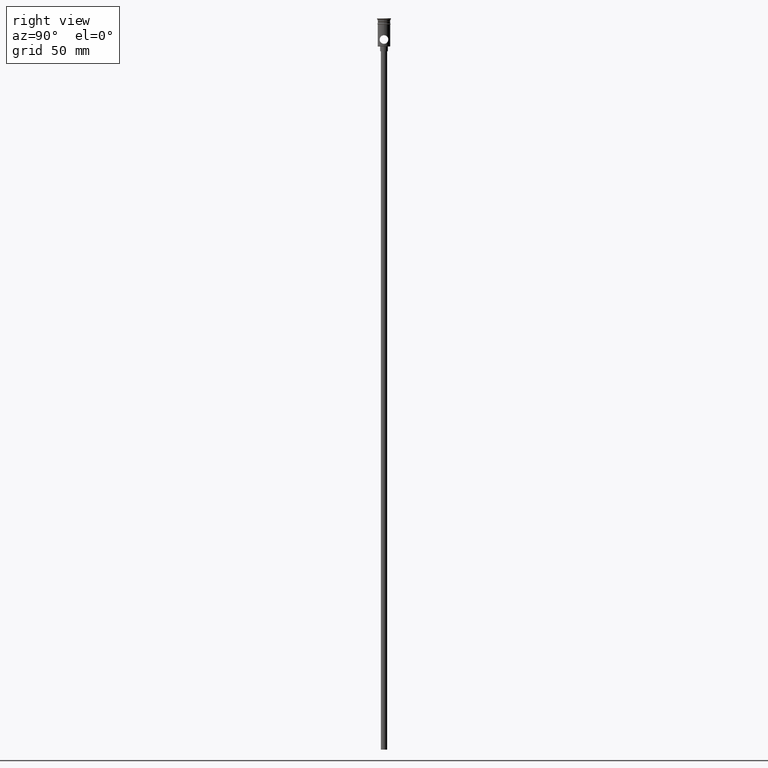
[diagram: clean part render]
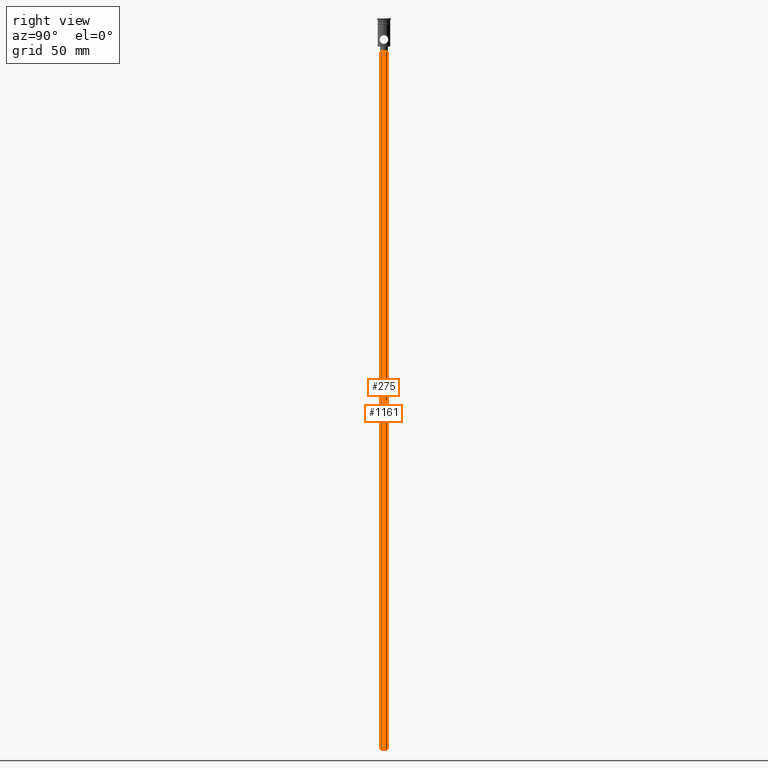
[diagram: same view with one multi-face feature highlighted, each face labeled with its STEP entity id]
A machine part, right view. The highlighted faces form ONE feature: a constant-radius fillet chain: 2 tangent blend faces with common blend radius 2 mm. The faces share edges in the B-rep.
Their STEP definitions:
[1] entity #275 (Cylinder):
#48 = LINE ( 'NONE', #387, #177 ) ;
#57 = VERTEX_POINT ( 'NONE', #770 ) ;
#92 = EDGE_CURVE ( 'NONE', #1415, #57, #395, .T. ) ;
#97 = DIRECTION ( 'NONE',  ( -1.000000000000000000, 0.000000000000000000, 0.000000000000000000 ) ) ;
#102 = VECTOR ( 'NONE', #687, 1000.000000000000000 ) ;
#157 = VERTEX_POINT ( 'NONE', #1292 ) ;
#177 = VECTOR ( 'NONE', #717, 1000.000000000000000 ) ;
#208 = EDGE_CURVE ( 'NONE', #751, #157, #486, .T. ) ;
#275 = ADVANCED_FACE ( 'NONE', ( #571 ), #1039, .T. ) ;
#350 = LINE ( 'NONE', #576, #102 ) ;
#368 = DIRECTION ( 'NONE',  ( 1.000000000000000000, 0.000000000000000000, 0.000000000000000000 ) ) ;
#371 = AXIS2_PLACEMENT_3D ( 'NONE', #1406, #1315, #97 ) ;
#387 = CARTESIAN_POINT ( 'NONE',  ( 2.000000000000000000, 0.000000000000000000, -468.0000000000000000 ) ) ;
#395 = CIRCLE ( 'NONE', #371, 2.000000000000000000 ) ;
#413 = AXIS2_PLACEMENT_3D ( 'NONE', #1249, #784, #1133 ) ;
#478 = ORIENTED_EDGE ( 'NONE', *, *, #1314, .T. ) ;
#486 = CIRCLE ( 'NONE', #413, 2.000000000000000000 ) ;
#511 = CARTESIAN_POINT ( 'NONE',  ( 2.000000000000000000, 0.000000000000000000, -20.99999999999999645 ) ) ;
#571 = FACE_OUTER_BOUND ( 'NONE', #963, .T. ) ;
#576 = CARTESIAN_POINT ( 'NONE',  ( -2.000000000000000000, 2.449293598294706414E-16, -468.0000000000000000 ) ) ;
#678 = CARTESIAN_POINT ( 'NONE',  ( 0.000000000000000000, 0.000000000000000000, -468.0000000000000000 ) ) ;
#687 = DIRECTION ( 'NONE',  ( -0.000000000000000000, -0.000000000000000000, 1.000000000000000000 ) ) ;
#717 = DIRECTION ( 'NONE',  ( -0.000000000000000000, -0.000000000000000000, 1.000000000000000000 ) ) ;
#751 = VERTEX_POINT ( 'NONE', #511 ) ;
#770 = CARTESIAN_POINT ( 'NONE',  ( -2.000000000000000000, 2.449293598294706414E-16, -468.0000000000000000 ) ) ;
#784 = DIRECTION ( 'NONE',  ( 0.000000000000000000, 0.000000000000000000, -1.000000000000000000 ) ) ;
#893 = ORIENTED_EDGE ( 'NONE', *, *, #208, .T. ) ;
#907 = ORIENTED_EDGE ( 'NONE', *, *, #92, .F. ) ;
#916 = DIRECTION ( 'NONE',  ( -0.000000000000000000, -0.000000000000000000, 1.000000000000000000 ) ) ;
#954 = ORIENTED_EDGE ( 'NONE', *, *, #1215, .F. ) ;
#963 = EDGE_LOOP ( 'NONE', ( #954, #907, #478, #893 ) ) ;
#968 = AXIS2_PLACEMENT_3D ( 'NONE', #678, #916, #368 ) ;
#1039 = CYLINDRICAL_SURFACE ( 'NONE', #968, 2.000000000000000000 ) ;
#1133 = DIRECTION ( 'NONE',  ( -1.000000000000000000, 0.000000000000000000, 0.000000000000000000 ) ) ;
#1206 = CARTESIAN_POINT ( 'NONE',  ( 2.000000000000000000, 0.000000000000000000, -468.0000000000000000 ) ) ;
#1215 = EDGE_CURVE ( 'NONE', #57, #157, #350, .T. ) ;
#1249 = CARTESIAN_POINT ( 'NONE',  ( 0.000000000000000000, 0.000000000000000000, -20.99999999999999645 ) ) ;
#1292 = CARTESIAN_POINT ( 'NONE',  ( -2.000000000000000000, 2.449293598294706414E-16, -20.99999999999999645 ) ) ;
#1314 = EDGE_CURVE ( 'NONE', #1415, #751, #48, .T. ) ;
#1315 = DIRECTION ( 'NONE',  ( 0.000000000000000000, 0.000000000000000000, -1.000000000000000000 ) ) ;
#1406 = CARTESIAN_POINT ( 'NONE',  ( 0.000000000000000000, 0.000000000000000000, -468.0000000000000000 ) ) ;
#1415 = VERTEX_POINT ( 'NONE', #1206 ) ;
[2] entity #1161 (Cylinder):
#48 = LINE ( 'NONE', #387, #177 ) ;
#57 = VERTEX_POINT ( 'NONE', #770 ) ;
#81 = EDGE_LOOP ( 'NONE', ( #405, #455, #869, #343 ) ) ;
#102 = VECTOR ( 'NONE', #687, 1000.000000000000000 ) ;
#157 = VERTEX_POINT ( 'NONE', #1292 ) ;
#177 = VECTOR ( 'NONE', #717, 1000.000000000000000 ) ;
#202 = AXIS2_PLACEMENT_3D ( 'NONE', #728, #504, #403 ) ;
#293 = DIRECTION ( 'NONE',  ( 1.000000000000000000, 0.000000000000000000, 0.000000000000000000 ) ) ;
#343 = ORIENTED_EDGE ( 'NONE', *, *, #1314, .F. ) ;
#348 = CIRCLE ( 'NONE', #1323, 2.000000000000000000 ) ;
#350 = LINE ( 'NONE', #576, #102 ) ;
#387 = CARTESIAN_POINT ( 'NONE',  ( 2.000000000000000000, 0.000000000000000000, -468.0000000000000000 ) ) ;
#403 = DIRECTION ( 'NONE',  ( -1.000000000000000000, 0.000000000000000000, 0.000000000000000000 ) ) ;
#405 = ORIENTED_EDGE ( 'NONE', *, *, #729, .F. ) ;
#455 = ORIENTED_EDGE ( 'NONE', *, *, #1215, .T. ) ;
#504 = DIRECTION ( 'NONE',  ( 0.000000000000000000, 0.000000000000000000, -1.000000000000000000 ) ) ;
#511 = CARTESIAN_POINT ( 'NONE',  ( 2.000000000000000000, 0.000000000000000000, -20.99999999999999645 ) ) ;
#576 = CARTESIAN_POINT ( 'NONE',  ( -2.000000000000000000, 2.449293598294706414E-16, -468.0000000000000000 ) ) ;
#687 = DIRECTION ( 'NONE',  ( -0.000000000000000000, -0.000000000000000000, 1.000000000000000000 ) ) ;
#717 = DIRECTION ( 'NONE',  ( -0.000000000000000000, -0.000000000000000000, 1.000000000000000000 ) ) ;
#728 = CARTESIAN_POINT ( 'NONE',  ( 0.000000000000000000, 0.000000000000000000, -20.99999999999999645 ) ) ;
#729 = EDGE_CURVE ( 'NONE', #57, #1415, #348, .T. ) ;
#743 = DIRECTION ( 'NONE',  ( -0.000000000000000000, -0.000000000000000000, 1.000000000000000000 ) ) ;
#751 = VERTEX_POINT ( 'NONE', #511 ) ;
#769 = EDGE_CURVE ( 'NONE', #157, #751, #809, .T. ) ;
#770 = CARTESIAN_POINT ( 'NONE',  ( -2.000000000000000000, 2.449293598294706414E-16, -468.0000000000000000 ) ) ;
#809 = CIRCLE ( 'NONE', #202, 2.000000000000000000 ) ;
#869 = ORIENTED_EDGE ( 'NONE', *, *, #769, .T. ) ;
#958 = FACE_OUTER_BOUND ( 'NONE', #81, .T. ) ;
#962 = CARTESIAN_POINT ( 'NONE',  ( 0.000000000000000000, 0.000000000000000000, -468.0000000000000000 ) ) ;
#1058 = CARTESIAN_POINT ( 'NONE',  ( 0.000000000000000000, 0.000000000000000000, -468.0000000000000000 ) ) ;
#1161 = ADVANCED_FACE ( 'NONE', ( #958 ), #1386, .T. ) ;
#1162 = DIRECTION ( 'NONE',  ( -1.000000000000000000, 0.000000000000000000, 0.000000000000000000 ) ) ;
#1173 = DIRECTION ( 'NONE',  ( 0.000000000000000000, 0.000000000000000000, -1.000000000000000000 ) ) ;
#1206 = CARTESIAN_POINT ( 'NONE',  ( 2.000000000000000000, 0.000000000000000000, -468.0000000000000000 ) ) ;
#1215 = EDGE_CURVE ( 'NONE', #57, #157, #350, .T. ) ;
#1263 = AXIS2_PLACEMENT_3D ( 'NONE', #962, #743, #293 ) ;
#1292 = CARTESIAN_POINT ( 'NONE',  ( -2.000000000000000000, 2.449293598294706414E-16, -20.99999999999999645 ) ) ;
#1314 = EDGE_CURVE ( 'NONE', #1415, #751, #48, .T. ) ;
#1323 = AXIS2_PLACEMENT_3D ( 'NONE', #1058, #1173, #1162 ) ;
#1386 = CYLINDRICAL_SURFACE ( 'NONE', #1263, 2.000000000000000000 ) ;
#1415 = VERTEX_POINT ( 'NONE', #1206 ) ;